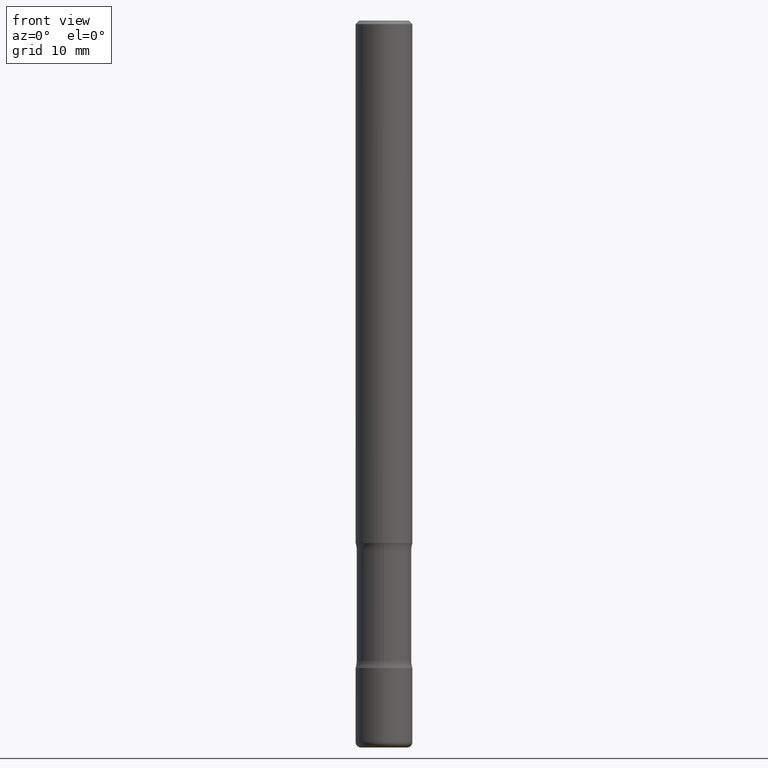
[diagram: clean part render]
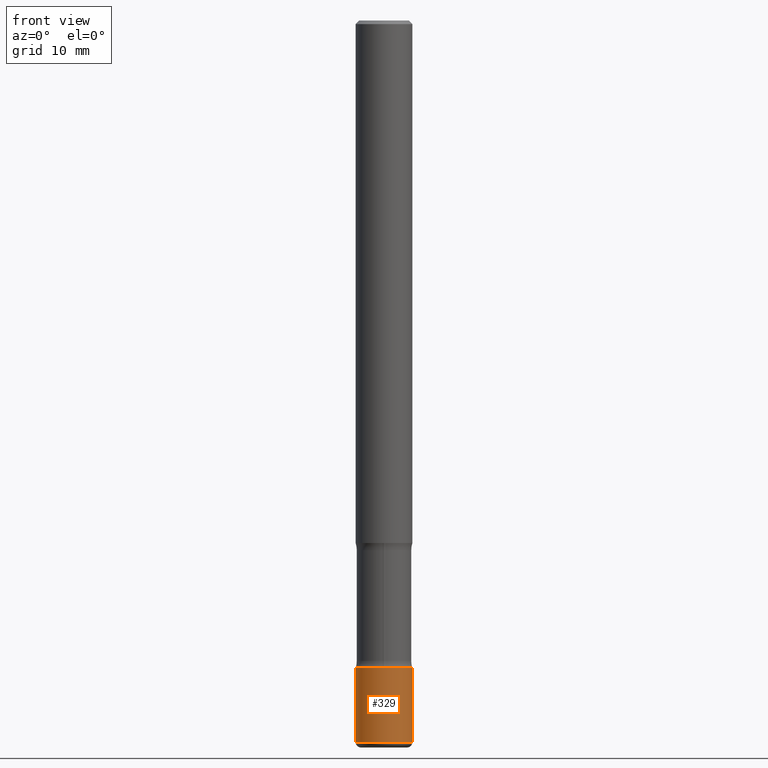
[diagram: same view with one face highlighted and labeled with its STEP entity id]
A machine part, front view. The second image highlights one B-rep face of the part: STEP entity #329.
In plain terms, the highlighted cylindrical surface (edge-blend (fillet) strip) has radius 3.9688 mm, axis along (-0, 0, 1).
Its self-contained STEP definition (entity closure, byte-faithful):
#1 = AXIS2_PLACEMENT_3D ( 'NONE', #409, #658, #91 ) ;
#8 = EDGE_CURVE ( 'NONE', #130, #629, #771, .T. ) ;
#32 = DIRECTION ( 'NONE',  ( 1.000000000000000000, -6.982962677686266711E-15, 4.876176775795936353E-29 ) ) ;
#41 = CARTESIAN_POINT ( 'NONE',  ( 9.708511160554992872E-29, -1.386118091520728738E-14, -3.970000000000000195 ) ) ;
#52 = AXIS2_PLACEMENT_3D ( 'NONE', #41, #236, #297 ) ;
#60 = CARTESIAN_POINT ( 'NONE',  ( 0.1562500000000001388, -1.495226883359576577E-14, -3.970000000000000195 ) ) ;
#63 = EDGE_CURVE ( 'NONE', #292, #629, #403, .T. ) ;
#91 = DIRECTION ( 'NONE',  ( 1.000000000000000000, -6.982962677686262766E-15, 0.000000000000000000 ) ) ;
#102 = CARTESIAN_POINT ( 'NONE',  ( -0.1562500000000000000, -1.203956856779284013E-14, -3.562500000000000000 ) ) ;
#104 = CARTESIAN_POINT ( 'NONE',  ( 0.1562500000000000000, -1.352949018801718435E-14, -3.562500000000000000 ) ) ;
#130 = VERTEX_POINT ( 'NONE', #60 ) ;
#142 = VERTEX_POINT ( 'NONE', #465 ) ;
#164 = LINE ( 'NONE', #662, #441 ) ;
#236 = DIRECTION ( 'NONE',  ( -2.445468806185136597E-29, 3.491481338843145583E-15, 1.000000000000000000 ) ) ;
#284 = CARTESIAN_POINT ( 'NONE',  ( 0.1562500000000000000, -1.091087918388479174E-15, 7.619026212181150377E-30 ) ) ;
#292 = VERTEX_POINT ( 'NONE', #102 ) ;
#297 = DIRECTION ( 'NONE',  ( 1.000000000000000000, -6.982962677686262766E-15, 0.000000000000000000 ) ) ;
#329 = ADVANCED_FACE ( 'NONE', ( #556 ), #795, .T. ) ;
#383 = ORIENTED_EDGE ( 'NONE', *, *, #63, .F. ) ;
#403 = CIRCLE ( 'NONE', #1, 0.1562500000000000000 ) ;
#409 = CARTESIAN_POINT ( 'NONE',  ( 8.711982622034549126E-29, -1.243840226962870597E-14, -3.562500000000000000 ) ) ;
#418 = EDGE_LOOP ( 'NONE', ( #793, #619, #544, #383 ) ) ;
#419 = CIRCLE ( 'NONE', #52, 0.1562500000000000000 ) ;
#441 = VECTOR ( 'NONE', #550, 39.37007874015748143 ) ;
#465 = CARTESIAN_POINT ( 'NONE',  ( -0.1562500000000001388, -1.275095789058212927E-14, -3.970000000000000195 ) ) ;
#544 = ORIENTED_EDGE ( 'NONE', *, *, #8, .T. ) ;
#550 = DIRECTION ( 'NONE',  ( -2.445468806185136877E-29, 3.491481338843145188E-15, 1.000000000000000000 ) ) ;
#556 = FACE_OUTER_BOUND ( 'NONE', #418, .T. ) ;
#616 = EDGE_CURVE ( 'NONE', #142, #130, #419, .T. ) ;
#619 = ORIENTED_EDGE ( 'NONE', *, *, #616, .T. ) ;
#629 = VERTEX_POINT ( 'NONE', #104 ) ;
#646 = VECTOR ( 'NONE', #783, 39.37007874015748143 ) ;
#658 = DIRECTION ( 'NONE',  ( -2.445468806185136597E-29, 3.491481338843145583E-15, 1.000000000000000000 ) ) ;
#662 = CARTESIAN_POINT ( 'NONE',  ( -0.1562500000000000000, 1.110223024625156540E-15, -7.685836078523291160E-30 ) ) ;
#695 = EDGE_CURVE ( 'NONE', #142, #292, #164, .T. ) ;
#728 = DIRECTION ( 'NONE',  ( -2.445468806185136597E-29, 3.491481338843145583E-15, 1.000000000000000000 ) ) ;
#763 = AXIS2_PLACEMENT_3D ( 'NONE', #785, #728, #32 ) ;
#771 = LINE ( 'NONE', #284, #646 ) ;
#783 = DIRECTION ( 'NONE',  ( -2.445468806185136877E-29, 3.491481338843145188E-15, 1.000000000000000000 ) ) ;
#785 = CARTESIAN_POINT ( 'NONE',  ( 0.000000000000000000, 0.000000000000000000, 0.000000000000000000 ) ) ;
#793 = ORIENTED_EDGE ( 'NONE', *, *, #695, .F. ) ;
#795 = CYLINDRICAL_SURFACE ( 'NONE', #763, 0.1562500000000000000 ) ;